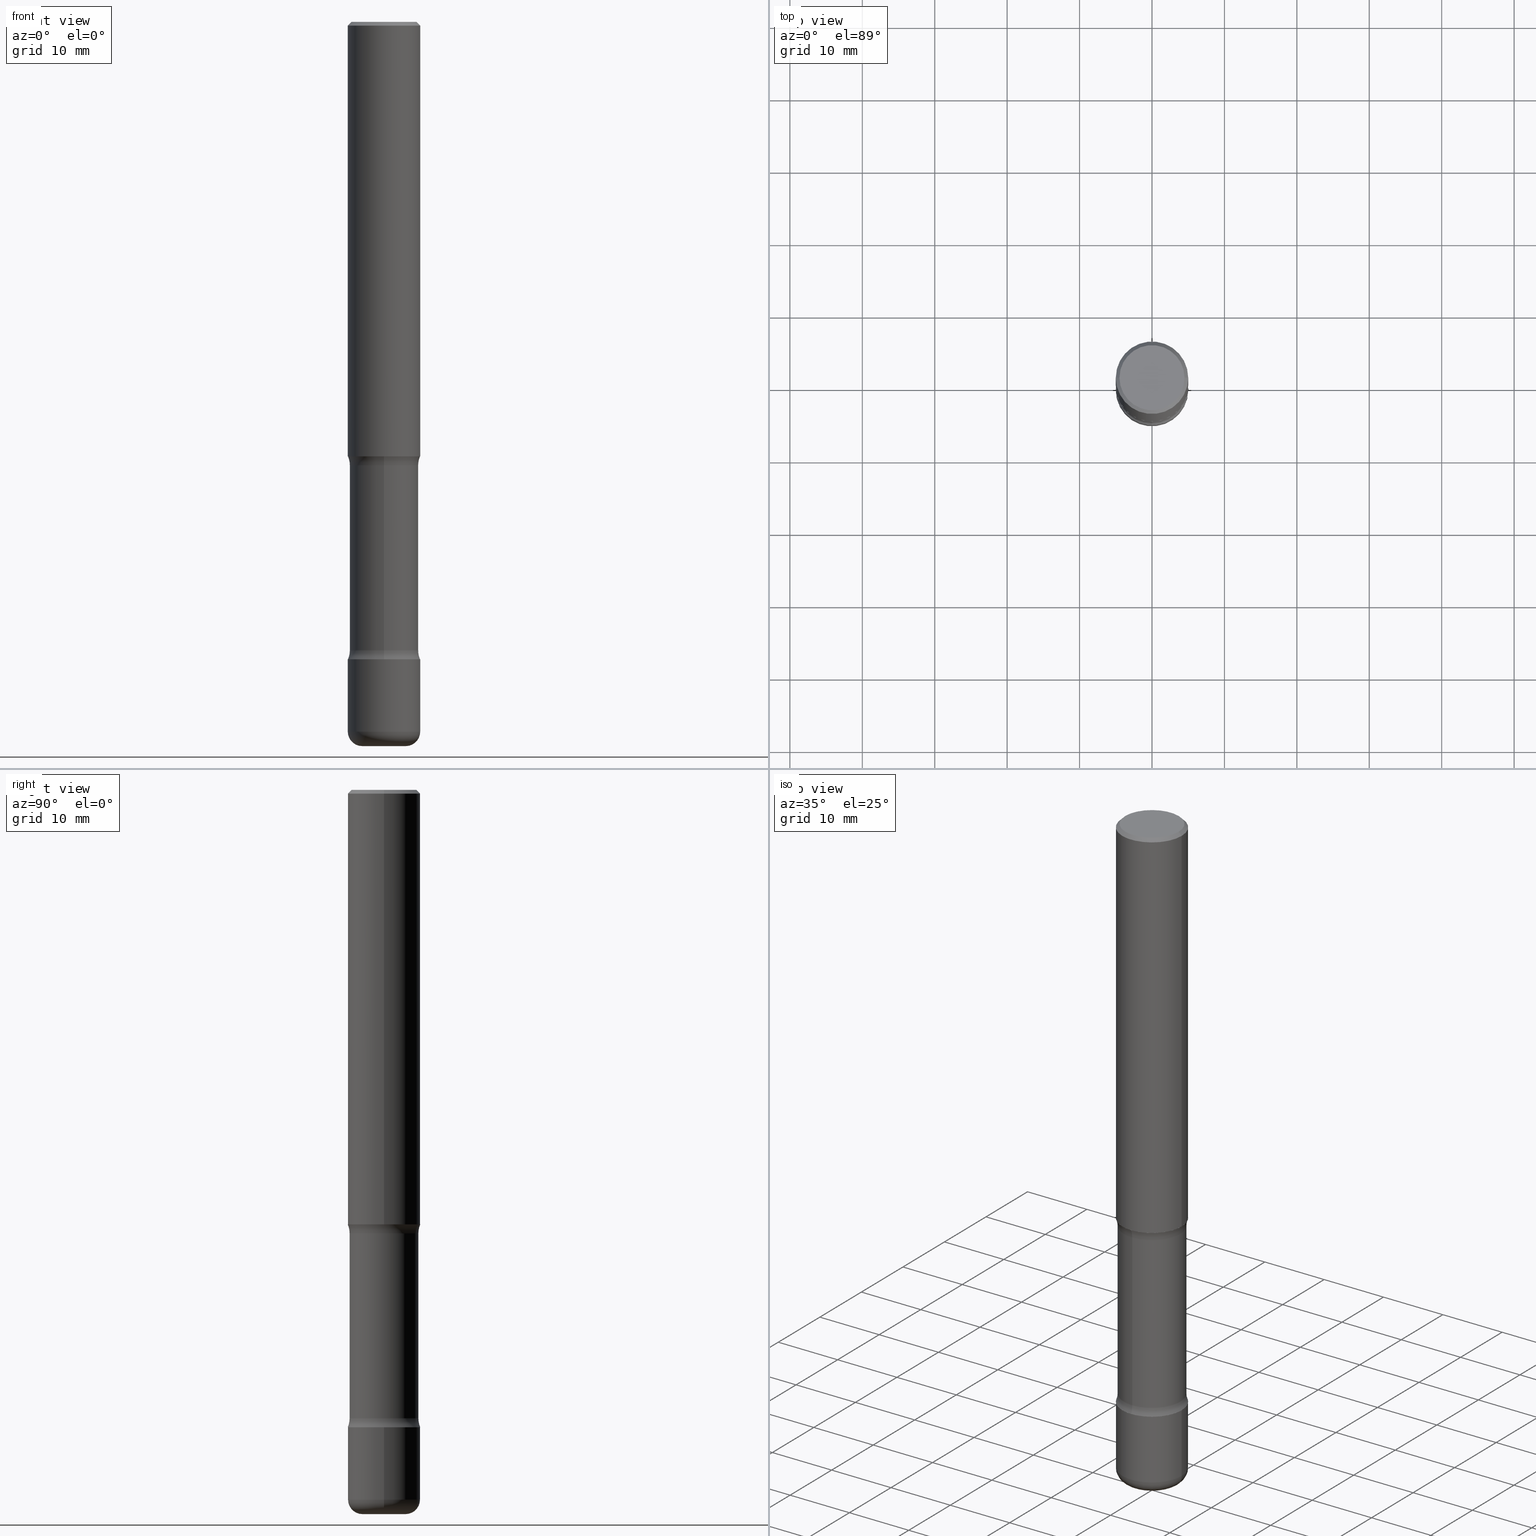
[diagram: canonical four-view strip — front | top / right | iso, engineering-drawing reading convention]
A machine part, canonical four-view strip (front | top / right | iso — engineering-drawing reading convention). The complete STEP part file that produces these views, byte-faithful:
ISO-10303-21;
HEADER;
FILE_DESCRIPTION (( 'STEP AP203' ),
    '1' );
FILE_NAME ('45132.STEP',
    '2024-03-02T04:55:23',
    ( '' ),
    ( '' ),
    'SwSTEP 2.0',
    'SolidWorks 2023',
    '' );
FILE_SCHEMA (( 'CONFIG_CONTROL_DESIGN' ));
ENDSEC;

DATA;
#1 = DIRECTION ( 'NONE',  ( -2.445468806185136877E-29, 3.491481338843145188E-15, 1.000000000000000000 ) ) ;
#2 = DIRECTION ( 'NONE',  ( 2.642978512612468392E-29, -3.208636197684844610E-15, -1.000000000000000000 ) ) ;
#3 = PERSON_AND_ORGANIZATION ( #399, #312 ) ;
#4 = CARTESIAN_POINT ( 'NONE',  ( 0.1968499999999999139, -1.420318657638188530E-15, -0.02000000000000006981 ) ) ;
#5 = AXIS2_PLACEMENT_3D ( 'NONE', #347, #516, #53 ) ;
#6 = CIRCLE ( 'NONE', #320, 0.1968500000000004690 ) ;
#7 = PERSON_AND_ORGANIZATION ( #399, #312 ) ;
#8 = DIRECTION ( 'NONE',  ( 1.000000000000000000, -6.982962677686265922E-15, 4.876176775795935793E-29 ) ) ;
#9 = DIRECTION ( 'NONE',  ( -2.445468806185136597E-29, 3.491481338843145583E-15, 1.000000000000000000 ) ) ;
#10 = ADVANCED_FACE ( 'NONE', ( #295 ), #380, .F. ) ;
#11 = ORIENTED_EDGE ( 'NONE', *, *, #134, .F. ) ;
#12 = ADVANCED_FACE ( 'NONE', ( #409 ), #118, .F. ) ;
#13 = DIRECTION ( 'NONE',  ( 6.860497997771530774E-15, 1.000000000000000000, 0.000000000000000000 ) ) ;
#14 = VERTEX_POINT ( 'NONE', #548 ) ;
#15 = CALENDAR_DATE ( 2024, 1, 3 ) ;
#16 = CLOSED_SHELL ( 'NONE', ( #254, #401, #22, #269, #281, #224 ) ) ;
#17 = DIRECTION ( 'NONE',  ( 2.438088387897960049E-29, -3.491481338843145188E-15, -1.000000000000000000 ) ) ;
#18 = ORIENTED_EDGE ( 'NONE', *, *, #169, .T. ) ;
#19 = APPROVAL_DATE_TIME ( #180, #423 ) ;
#20 = PLANE ( 'NONE',  #74 ) ;
#21 = ORIENTED_EDGE ( 'NONE', *, *, #342, .F. ) ;
#22 = ADVANCED_FACE ( 'NONE', ( #34 ), #26, .T. ) ;
#23 = CARTESIAN_POINT ( 'NONE',  ( 9.627810689950883669E-29, -1.374596203102546341E-14, -3.937000000000000277 ) ) ;
#24 = ORIENTED_EDGE ( 'NONE', *, *, #169, .F. ) ;
#25 = CARTESIAN_POINT ( 'NONE',  ( 2.178684355438173716E-15, 0.3119999999999915619, -2.410836174808471011 ) ) ;
#26 = CONICAL_SURFACE ( 'NONE', #136, 0.1968499999999999139, 0.7853981633974479459 ) ;
#27 = AXIS2_PLACEMENT_3D ( 'NONE', #78, #160, #80 ) ;
#28 = VERTEX_POINT ( 'NONE', #79 ) ;
#29 = DIRECTION ( 'NONE',  ( -1.000000000000000000, 6.982962677686265922E-15, -4.883557194083112340E-29 ) ) ;
#30 = ORIENTED_EDGE ( 'NONE', *, *, #389, .F. ) ;
#31 = EDGE_CURVE ( 'NONE', #71, #211, #277, .T. ) ;
#32 = ADVANCED_FACE ( 'NONE', ( #43 ), #145, .T. ) ;
#33 = DIRECTION ( 'NONE',  ( 1.000000000000000000, -6.982962677686266711E-15, 4.876176775795935793E-29 ) ) ;
#34 = FACE_OUTER_BOUND ( 'NONE', #76, .T. ) ;
#35 = CARTESIAN_POINT ( 'NONE',  ( 1.305814020727429820E-15, 0.1869999999999864826, -3.937000000000000721 ) ) ;
#37 = ORIENTED_EDGE ( 'NONE', *, *, #337, .T. ) ;
#36 = AXIS2_PLACEMENT_3D ( 'NONE', #556, #518, #307 ) ;
#38 = AXIS2_PLACEMENT_3D ( 'NONE', #496, #373, #282 ) ;
#39 = PERSON_AND_ORGANIZATION ( #399, #312 ) ;
#40 = EDGE_LOOP ( 'NONE', ( #144, #285, #152, #392 ) ) ;
#41 = PERSON_AND_ORGANIZATION_ROLE ( 'creator' ) ;
#42 = EDGE_CURVE ( 'NONE', #14, #506, #370, .T. ) ;
#43 = FACE_OUTER_BOUND ( 'NONE', #407, .T. ) ;
#44 = CARTESIAN_POINT ( 'NONE',  ( 9.435352294904112142E-29, -1.347118244965850850E-14, -3.858300000000000285 ) ) ;
#45 = AXIS2_PLACEMENT_3D ( 'NONE', #175, #378, #472 ) ;
#46 = AXIS2_PLACEMENT_3D ( 'NONE', #292, #123, #112 ) ;
#47 = PRODUCT_DEFINITION_FORMATION_WITH_SPECIFIED_SOURCE ( 'ANY', '', #446, .NOT_KNOWN. ) ;
#48 = LINE ( 'NONE', #217, #454 ) ;
#49 = DIRECTION ( 'NONE',  ( 1.000000000000000000, -6.982962677686266711E-15, 4.875932113059882493E-29 ) ) ;
#50 = EDGE_CURVE ( 'NONE', #71, #273, #89, .T. ) ;
#51 =( LENGTH_UNIT ( ) NAMED_UNIT ( * ) SI_UNIT ( $, .METRE. ) );
#52 = EDGE_CURVE ( 'NONE', #351, #553, #530, .T. ) ;
#53 = DIRECTION ( 'NONE',  ( 1.000000000000000000, -6.982962677686269866E-15, 0.000000000000000000 ) ) ;
#54 = CARTESIAN_POINT ( 'NONE',  ( 9.721114275267154766E-29, -1.361234598634228266E-14, -3.937000000000000277 ) ) ;
#55 = AXIS2_PLACEMENT_3D ( 'NONE', #233, #538, #393 ) ;
#56 = CC_DESIGN_DATE_AND_TIME_ASSIGNMENT ( #142, #357, ( #138 ) ) ;
#57 = DIRECTION ( 'NONE',  ( 6.982962677686265922E-15, 1.000000000000000000, -3.208636197684844216E-15 ) ) ;
#58 = ORIENTED_EDGE ( 'NONE', *, *, #537, .F. ) ;
#59 = APPROVAL_ROLE ( '' ) ;
#60 = CARTESIAN_POINT ( 'NONE',  ( 5.776686413970529753E-29, -8.247577218615279626E-15, -2.362200000000000077 ) ) ;
#61 = ORIENTED_EDGE ( 'NONE', *, *, #415, .F. ) ;
#62 = CARTESIAN_POINT ( 'NONE',  ( 8.472571225909024784E-29, -1.209658624655596216E-14, -3.464599999999999902 ) ) ;
#63 = ORIENTED_EDGE ( 'NONE', *, *, #525, .F. ) ;
#64 = AXIS2_PLACEMENT_3D ( 'NONE', #428, #2, #475 ) ;
#65 = CIRCLE ( 'NONE', #38, 0.1968500000000001082 ) ;
#66 = DIRECTION ( 'NONE',  ( -2.445468806185136597E-29, 3.491481338843145583E-15, 1.000000000000000000 ) ) ;
#67 = EDGE_CURVE ( 'NONE', #234, #417, #286, .T. ) ;
#68 = CARTESIAN_POINT ( 'NONE',  ( 0.1968499999999999139, -1.420318657638188530E-15, -0.02000000000000006981 ) ) ;
#69 = VERTEX_POINT ( 'NONE', #257 ) ;
#70 = PLANE ( 'NONE',  #244 ) ;
#71 = VERTEX_POINT ( 'NONE', #177 ) ;
#72 = DIRECTION ( 'NONE',  ( 6.982962677686266711E-15, 1.000000000000000000, -2.921762560068729017E-15 ) ) ;
#73 = EDGE_CURVE ( 'NONE', #417, #113, #387, .T. ) ;
#74 = AXIS2_PLACEMENT_3D ( 'NONE', #60, #391, #8 ) ;
#75 = DESIGN_CONTEXT ( 'detailed design', #418, 'design' ) ;
#76 = EDGE_LOOP ( 'NONE', ( #247, #481, #390, #487 ) ) ;
#77 = LOCAL_TIME ( 23, 55, 23.00000000000000000, #471 ) ;
#78 = CARTESIAN_POINT ( 'NONE',  ( 4.890937612370289799E-31, -6.982962677686315028E-17, -0.02000000000000006981 ) ) ;
#79 = CARTESIAN_POINT ( 'NONE',  ( 1.374596203102600181E-15, 0.1968499999999919203, -2.362200000000000966 ) ) ;
#80 = DIRECTION ( 'NONE',  ( -1.000000000000000000, 6.982962677686266711E-15, 0.000000000000000000 ) ) ;
#81 = EDGE_LOOP ( 'NONE', ( #542, #497, #533, #458 ) ) ;
#82 = CARTESIAN_POINT ( 'NONE',  ( 8.472571225909024784E-29, -1.209658624655596216E-14, -3.464599999999999902 ) ) ;
#83 = VECTOR ( 'NONE', #279, 39.37007874015748143 ) ;
#84 = MANIFOLD_SOLID_BREP ( 'Body-Move/Copy2[1]', #463 ) ;
#85 = EDGE_CURVE ( 'NONE', #28, #69, #207, .T. ) ;
#86 = PERSON_AND_ORGANIZATION ( #399, #312 ) ;
#87 = DIRECTION ( 'NONE',  ( 2.642978512612468392E-29, -3.208636197684844610E-15, -1.000000000000000000 ) ) ;
#88 = PERSON_AND_ORGANIZATION_ROLE ( 'design_supplier' ) ;
#89 = LINE ( 'NONE', #4, #187 ) ;
#90 =( CONVERSION_BASED_UNIT ( 'INCH', #555 ) LENGTH_UNIT ( ) NAMED_UNIT ( #102 ) );
#91 = UNCERTAINTY_MEASURE_WITH_UNIT (LENGTH_MEASURE( 1.000000000000000082E-05 ), #90, 'distance_accuracy_value', 'NONE');
#92 = DIRECTION ( 'NONE',  ( 6.982962677686266711E-15, 1.000000000000000000, -2.921762560068730989E-15 ) ) ;
#93 = EDGE_CURVE ( 'NONE', #417, #101, #250, .T. ) ;
#94 = AXIS2_PLACEMENT_3D ( 'NONE', #44, #511, #127 ) ;
#95 = CIRCLE ( 'NONE', #521, 0.1968500000000001082 ) ;
#96 = AXIS2_PLACEMENT_3D ( 'NONE', #527, #400, #13 ) ;
#97 = DATE_AND_TIME ( #343, #210 ) ;
#98 = CARTESIAN_POINT ( 'NONE',  ( 5.558951713605038858E-29, -8.559385702228190105E-15, -2.362200000000000077 ) ) ;
#99 = CARTESIAN_POINT ( 'NONE',  ( -0.1968500000000001082, -1.138518097276347833E-14, -3.464599999999999902 ) ) ;
#100 = CARTESIAN_POINT ( 'NONE',  ( 8.472571225909024784E-29, -1.209658624655596216E-14, -3.464599999999999902 ) ) ;
#101 = VERTEX_POINT ( 'NONE', #420 ) ;
#102 = DIMENSIONAL_EXPONENTS ( 1.000000000000000000, 0.000000000000000000, 0.000000000000000000, 0.000000000000000000, 0.000000000000000000, 0.000000000000000000, 0.000000000000000000 ) ;
#103 = CIRCLE ( 'NONE', #427, 0.1250000000000000555 ) ;
#104 = DIRECTION ( 'NONE',  ( -1.000000000000000000, 6.982962677686265922E-15, -4.876176775795935793E-29 ) ) ;
#105 = ORIENTED_EDGE ( 'NONE', *, *, #114, .F. ) ;
#106 = DIRECTION ( 'NONE',  ( -2.445468806185136877E-29, 3.491481338843145188E-15, 1.000000000000000000 ) ) ;
#107 = VERTEX_POINT ( 'NONE', #99 ) ;
#108 = DIRECTION ( 'NONE',  ( -1.000000000000000000, 6.982962677686265922E-15, -4.876176775795935793E-29 ) ) ;
#109 = ORIENTED_EDGE ( 'NONE', *, *, #515, .T. ) ;
#110 = CYLINDRICAL_SURFACE ( 'NONE', #55, 0.1968500000000000250 ) ;
#111 = ORIENTED_EDGE ( 'NONE', *, *, #549, .T. ) ;
#112 = DIRECTION ( 'NONE',  ( 1.000000000000000000, -6.982962677686268288E-15, 0.000000000000000000 ) ) ;
#113 = VERTEX_POINT ( 'NONE', #305 ) ;
#114 = EDGE_CURVE ( 'NONE', #506, #14, #155, .T. ) ;
#115 = LINE ( 'NONE', #35, #156 ) ;
#116 = DIRECTION ( 'NONE',  ( 2.642978512612468392E-29, -3.208636197684844610E-15, -1.000000000000000000 ) ) ;
#117 = DIRECTION ( 'NONE',  ( -2.445468806185136597E-29, 3.491481338843145583E-15, 1.000000000000000000 ) ) ;
#118 = TOROIDAL_SURFACE ( 'NONE', #226, 0.3120000000000001106, 0.1250000000000000278 ) ;
#119 = CIRCLE ( 'NONE', #540, 0.1181500000000002687 ) ;
#120 = ORIENTED_EDGE ( 'NONE', *, *, #415, .T. ) ;
#121 = DIRECTION ( 'NONE',  ( 2.642978512612468392E-29, -3.208636197684844610E-15, -1.000000000000000000 ) ) ;
#122 = EDGE_LOOP ( 'NONE', ( #449, #396, #213, #485 ) ) ;
#123 = DIRECTION ( 'NONE',  ( -2.445468806185136597E-29, 3.491481338843145583E-15, 1.000000000000000000 ) ) ;
#124 = VERTEX_POINT ( 'NONE', #215 ) ;
#125 = EDGE_CURVE ( 'NONE', #113, #107, #95, .T. ) ;
#126 = DATE_AND_TIME ( #212, #514 ) ;
#127 = DIRECTION ( 'NONE',  ( 1.000000000000000000, -6.982962677686272233E-15, 4.883557194083114022E-29 ) ) ;
#128 = AXIS2_PLACEMENT_3D ( 'NONE', #448, #148, #104 ) ;
#129 = DIRECTION ( 'NONE',  ( 1.000000000000000000, 0.000000000000000000, 0.000000000000000000 ) ) ;
#130 = CARTESIAN_POINT ( 'NONE',  ( 5.558951713605038858E-29, -8.559385702228190105E-15, -2.362200000000000077 ) ) ;
#131 = CC_DESIGN_PERSON_AND_ORGANIZATION_ASSIGNMENT ( #132, #88, ( #47 ) ) ;
#132 = PERSON_AND_ORGANIZATION ( #399, #312 ) ;
#133 = CARTESIAN_POINT ( 'NONE',  ( 5.687496078559489130E-29, -8.715441493235574538E-15, -2.410836174808470123 ) ) ;
#134 = EDGE_CURVE ( 'NONE', #124, #273, #330, .T. ) ;
#135 = DIRECTION ( 'NONE',  ( 2.642978512612468392E-29, -3.208636197684844610E-15, -1.000000000000000000 ) ) ;
#136 = AXIS2_PLACEMENT_3D ( 'NONE', #205, #545, #163 ) ;
#137 = AXIS2_PLACEMENT_3D ( 'NONE', #62, #17, #108 ) ;
#138 = SECURITY_CLASSIFICATION ( '', '', #534 ) ;
#139 = DIRECTION ( 'NONE',  ( -2.445468806185136597E-29, 3.491481338843145583E-15, 1.000000000000000000 ) ) ;
#140 = FACE_OUTER_BOUND ( 'NONE', #186, .T. ) ;
#141 = CC_DESIGN_PERSON_AND_ORGANIZATION_ASSIGNMENT ( #7, #488, ( #138 ) ) ;
#142 = DATE_AND_TIME ( #150, #321 ) ;
#143 = FACE_OUTER_BOUND ( 'NONE', #323, .T. ) ;
#144 = ORIENTED_EDGE ( 'NONE', *, *, #42, .F. ) ;
#145 = TOROIDAL_SURFACE ( 'NONE', #94, 0.1181500000000002409, 0.07869999999999995055 ) ;
#146 = CIRCLE ( 'NONE', #260, 0.1869999999999999718 ) ;
#147 = APPROVAL_PERSON_ORGANIZATION ( #482, #423, #59 ) ;
#148 = DIRECTION ( 'NONE',  ( 2.438088387897960049E-29, -3.491481338843145188E-15, -1.000000000000000000 ) ) ;
#149 = ORIENTED_EDGE ( 'NONE', *, *, #67, .T. ) ;
#150 = CALENDAR_DATE ( 2024, 1, 3 ) ;
#151 = FACE_OUTER_BOUND ( 'NONE', #539, .T. ) ;
#152 = ORIENTED_EDGE ( 'NONE', *, *, #191, .T. ) ;
#153 = PLANE ( 'NONE',  #386 ) ;
#154 = ORIENTED_EDGE ( 'NONE', *, *, #52, .F. ) ;
#155 = CIRCLE ( 'NONE', #64, 0.1870000000000002494 ) ;
#156 = VECTOR ( 'NONE', #450, 39.37007874015748143 ) ;
#157 = CARTESIAN_POINT ( 'NONE',  ( 9.435352294904112142E-29, -1.347118244965850850E-14, -3.858300000000000285 ) ) ;
#158 = VERTEX_POINT ( 'NONE', #520 ) ;
#159 = ADVANCED_FACE ( 'NONE', ( #432 ), #467, .T. ) ;
#160 = DIRECTION ( 'NONE',  ( 2.445468806185136597E-29, -3.491481338843145583E-15, -1.000000000000000000 ) ) ;
#161 = ORIENTED_EDGE ( 'NONE', *, *, #309, .F. ) ;
#162 = FACE_OUTER_BOUND ( 'NONE', #240, .T. ) ;
#163 = DIRECTION ( 'NONE',  ( -1.000000000000000000, 6.982962677686266711E-15, 0.000000000000000000 ) ) ;
#164 = DIRECTION ( 'NONE',  ( -2.445468806185136597E-29, 3.491481338843145583E-15, 1.000000000000000000 ) ) ;
#165 = AXIS2_PLACEMENT_3D ( 'NONE', #54, #87, #173 ) ;
#166 = CIRCLE ( 'NONE', #395, 0.1968499999999999139 ) ;
#167 = DIRECTION ( 'NONE',  ( -2.445468806185136597E-29, 3.491481338843145583E-15, 1.000000000000000000 ) ) ;
#168 = CARTESIAN_POINT ( 'NONE',  ( -0.1968499999999999139, 1.304766576325677916E-15, -0.02000000000000006981 ) ) ;
#169 = EDGE_CURVE ( 'NONE', #280, #158, #346, .T. ) ;
#170 = ORIENTED_EDGE ( 'NONE', *, *, #85, .F. ) ;
#171 = DIRECTION ( 'NONE',  ( 6.860497997771532351E-15, 1.000000000000000000, 0.000000000000000000 ) ) ;
#172 = DIRECTION ( 'NONE',  ( 2.642978512612468392E-29, -3.208636197684844610E-15, -1.000000000000000000 ) ) ;
#173 = DIRECTION ( 'NONE',  ( 6.982962677686266711E-15, 1.000000000000000000, -2.921762560068729017E-15 ) ) ;
#174 = APPROVAL ( #377, 'UNSPECIFIED' ) ;
#175 = CARTESIAN_POINT ( 'NONE',  ( 0.1181500000000002409, -1.429621949002714343E-14, -3.858300000000000285 ) ) ;
#176 = CARTESIAN_POINT ( 'NONE',  ( 8.344026860954575633E-29, -1.194053045554857930E-14, -3.415963825191530745 ) ) ;
#177 = CARTESIAN_POINT ( 'NONE',  ( 0.1768499999999998407, -1.316798864272041352E-15, 4.268512490109333727E-18 ) ) ;
#178 = TOROIDAL_SURFACE ( 'NONE', #493, 0.1181500000000002409, 0.07869999999999995055 ) ;
#179 = CC_DESIGN_APPROVAL ( #174, ( #47 ) ) ;
#180 = DATE_AND_TIME ( #15, #455 ) ;
#181 = DIRECTION ( 'NONE',  ( 1.000000000000000000, -6.982962677686265133E-15, 0.000000000000000000 ) ) ;
#182 = EDGE_CURVE ( 'NONE', #553, #319, #146, .T. ) ;
#183 = DIRECTION ( 'NONE',  ( 1.000000000000000000, -6.982962677686266711E-15, 4.875932113059882493E-29 ) ) ;
#184 = EDGE_LOOP ( 'NONE', ( #61, #509, #367, #63 ) ) ;
#185 = DIRECTION ( 'NONE',  ( 2.642978512612467832E-29, -3.208636197684844610E-15, -1.000000000000000000 ) ) ;
#186 = EDGE_LOOP ( 'NONE', ( #290, #24 ) ) ;
#187 = VECTOR ( 'NONE', #301, 39.37007874015748143 ) ;
#188 = EDGE_CURVE ( 'NONE', #101, #417, #209, .T. ) ;
#189 = TOROIDAL_SURFACE ( 'NONE', #297, 0.3120000000000002771, 0.1250000000000000555 ) ;
#190 = LINE ( 'NONE', #237, #83 ) ;
#191 = EDGE_CURVE ( 'NONE', #69, #28, #6, .T. ) ;
#192 = ORIENTED_EDGE ( 'NONE', *, *, #73, .T. ) ;
#193 = COORDINATED_UNIVERSAL_TIME_OFFSET ( 5, 0, .BEHIND. ) ;
#194 = CARTESIAN_POINT ( 'NONE',  ( -1.043851414335219820E-46, 1.490343170380447200E-32, 4.268512490100411279E-18 ) ) ;
#195 = ORIENTED_EDGE ( 'NONE', *, *, #206, .F. ) ;
#196 = CARTESIAN_POINT ( 'NONE',  ( 2.178684355438199354E-15, 0.3119999999999881757, -3.415963825191531633 ) ) ;
#197 = EDGE_LOOP ( 'NONE', ( #413, #460, #359, #361 ) ) ;
#198 = CIRCLE ( 'NONE', #484, 0.1968500000000001082 ) ;
#199 = DIRECTION ( 'NONE',  ( -1.000000000000000000, 6.982962677686265922E-15, -4.883557194083112340E-29 ) ) ;
#200 = ADVANCED_FACE ( 'NONE', ( #560 ), #252, .F. ) ;
#201 = ORIENTED_EDGE ( 'NONE', *, *, #379, .F. ) ;
#202 = CARTESIAN_POINT ( 'NONE',  ( 8.472571225909024784E-29, -1.209658624655596216E-14, -3.464599999999999902 ) ) ;
#203 = DIRECTION ( 'NONE',  ( 6.982962677686265922E-15, 1.000000000000000000, -3.208636197684844216E-15 ) ) ;
#204 = FACE_OUTER_BOUND ( 'NONE', #253, .T. ) ;
#205 = CARTESIAN_POINT ( 'NONE',  ( 4.890937612370289799E-31, -6.982962677686315028E-17, -0.02000000000000006981 ) ) ;
#206 = EDGE_CURVE ( 'NONE', #273, #124, #166, .T. ) ;
#207 = CIRCLE ( 'NONE', #503, 0.1968500000000004690 ) ;
#208 = FACE_OUTER_BOUND ( 'NONE', #266, .T. ) ;
#209 = CIRCLE ( 'NONE', #435, 0.1968500000000002470 ) ;
#210 = LOCAL_TIME ( 23, 55, 23.00000000000000000, #517 ) ;
#211 = VERTEX_POINT ( 'NONE', #229 ) ;
#212 = CALENDAR_DATE ( 2024, 1, 3 ) ;
#213 = ORIENTED_EDGE ( 'NONE', *, *, #125, .F. ) ;
#214 = DIRECTION ( 'NONE',  ( 1.000000000000000000, -6.982962677686266711E-15, 4.876176775795935793E-29 ) ) ;
#215 = CARTESIAN_POINT ( 'NONE',  ( -0.1968499999999999139, 1.304766576325677916E-15, -0.02000000000000006981 ) ) ;
#216 = EDGE_CURVE ( 'NONE', #158, #280, #198, .T. ) ;
#217 = CARTESIAN_POINT ( 'NONE',  ( -0.1968500000000000250, 1.398703375343757393E-15, -9.682923725166783677E-30 ) ) ;
#218 = DIRECTION ( 'NONE',  ( 2.642978512612468392E-29, -3.208636197684844610E-15, -1.000000000000000000 ) ) ;
#219 = VECTOR ( 'NONE', #106, 39.37007874015748143 ) ;
#220 = CARTESIAN_POINT ( 'NONE',  ( -1.316701078222216832E-15, -0.1870000000000119345, -3.415963825191530301 ) ) ;
#221 = CARTESIAN_POINT ( 'NONE',  ( 4.890937612370289799E-31, -6.982962677686315028E-17, -0.02000000000000006981 ) ) ;
#222 = DIRECTION ( 'NONE',  ( 6.982962677686266711E-15, 1.000000000000000000, -2.921762560068730989E-15 ) ) ;
#223 = DIRECTION ( 'NONE',  ( -2.445468806185136597E-29, 3.491481338843145583E-15, 1.000000000000000000 ) ) ;
#224 = ADVANCED_FACE ( 'NONE', ( #310 ), #532, .T. ) ;
#225 = CARTESIAN_POINT ( 'NONE',  ( 9.435352294904112142E-29, -1.347118244965850850E-14, -3.858300000000000285 ) ) ;
#226 = AXIS2_PLACEMENT_3D ( 'NONE', #500, #116, #203 ) ;
#227 = AXIS2_PLACEMENT_3D ( 'NONE', #546, #164, #33 ) ;
#228 = AXIS2_PLACEMENT_3D ( 'NONE', #176, #172, #222 ) ;
#229 = CARTESIAN_POINT ( 'NONE',  ( -0.1768499999999998407, 1.269851762937246464E-15, 4.268512490091652920E-18 ) ) ;
#230 = ORIENTED_EDGE ( 'NONE', *, *, #188, .F. ) ;
#231 = CARTESIAN_POINT ( 'NONE',  ( 0.1181500000000002687, -1.457099907139409992E-14, -3.937000000000000277 ) ) ;
#232 = ORIENTED_EDGE ( 'NONE', *, *, #67, .F. ) ;
#233 = CARTESIAN_POINT ( 'NONE',  ( 0.000000000000000000, 0.000000000000000000, 0.000000000000000000 ) ) ;
#234 = VERTEX_POINT ( 'NONE', #231 ) ;
#235 = AXIS2_PLACEMENT_3D ( 'NONE', #100, #275, #434 ) ;
#236 = AXIS2_PLACEMENT_3D ( 'NONE', #251, #519, #129 ) ;
#237 = CARTESIAN_POINT ( 'NONE',  ( -1.282913125583179628E-15, -0.1870000000000137386, -3.936999999999999389 ) ) ;
#238 = EDGE_LOOP ( 'NONE', ( #441, #105, #502, #374 ) ) ;
#239 = FACE_OUTER_BOUND ( 'NONE', #536, .T. ) ;
#240 = EDGE_LOOP ( 'NONE', ( #436, #411, #192, #30 ) ) ;
#241 = PRODUCT_DEFINITION_SHAPE ( 'NONE', 'NONE',  #433 ) ;
#242 = CC_DESIGN_PERSON_AND_ORGANIZATION_ASSIGNMENT ( #559, #429, ( #433 ) ) ;
#243 = DIRECTION ( 'NONE',  ( -2.445468806185136597E-29, 3.491481338843145583E-15, 1.000000000000000000 ) ) ;
#244 = AXIS2_PLACEMENT_3D ( 'NONE', #82, #408, #403 ) ;
#245 = FACE_OUTER_BOUND ( 'NONE', #333, .T. ) ;
#246 = EDGE_LOOP ( 'NONE', ( #58, #18, #314, #11 ) ) ;
#247 = ORIENTED_EDGE ( 'NONE', *, *, #50, .F. ) ;
#248 = CARTESIAN_POINT ( 'NONE',  ( 9.627810689950883669E-29, -1.374596203102546341E-14, -3.937000000000000277 ) ) ;
#249 = EDGE_LOOP ( 'NONE', ( #551, #335 ) ) ;
#250 = CIRCLE ( 'NONE', #5, 0.1968500000000002470 ) ;
#251 = CARTESIAN_POINT ( 'NONE',  ( 0.000000000000000000, 0.000000000000000000, 0.000000000000000000 ) ) ;
#252 = TOROIDAL_SURFACE ( 'NONE', #444, 0.3120000000000001106, 0.1250000000000000278 ) ;
#253 = EDGE_LOOP ( 'NONE', ( #271, #201 ) ) ;
#254 = ADVANCED_FACE ( 'NONE', ( #239 ), #110, .T. ) ;
#255 = APPROVAL_DATE_TIME ( #126, #174 ) ;
#256 = DIRECTION ( 'NONE',  ( -2.445468806185136597E-29, 3.491481338843145583E-15, 1.000000000000000000 ) ) ;
#257 = CARTESIAN_POINT ( 'NONE',  ( -1.350489030861273167E-15, -0.1968500000000089900, -2.362199999999999189 ) ) ;
#258 = MANIFOLD_SOLID_BREP ( 'Body-Move/Copy2[2]', #16 ) ;
#259 = CARTESIAN_POINT ( 'NONE',  ( 0.000000000000000000, 0.000000000000000000, 0.000000000000000000 ) ) ;
#260 = AXIS2_PLACEMENT_3D ( 'NONE', #422, #302, #92 ) ;
#261 = APPROVAL_STATUS ( 'not_yet_approved' ) ;
#262 = CARTESIAN_POINT ( 'NONE',  ( 5.776686413970529753E-29, -8.247577218615279626E-15, -2.362200000000000077 ) ) ;
#263 = EDGE_CURVE ( 'NONE', #14, #553, #190, .T. ) ;
#264 = CARTESIAN_POINT ( 'NONE',  ( 8.472571225909024784E-29, -1.209658624655596216E-14, -3.464599999999999902 ) ) ;
#265 = CARTESIAN_POINT ( 'NONE',  ( -0.1181500000000002409, -1.263167620735794871E-14, -3.858300000000000285 ) ) ;
#266 = EDGE_LOOP ( 'NONE', ( #109, #445, #402, #232 ) ) ;
#267 = AXIS2_PLACEMENT_3D ( 'NONE', #262, #223, #385 ) ;
#268 = APPROVAL_PERSON_ORGANIZATION ( #39, #174, #340 ) ;
#269 = ADVANCED_FACE ( 'NONE', ( #151 ), #442, .F. ) ;
#270 = CARTESIAN_POINT ( 'NONE',  ( 0.1968500000000000250, -1.374596203102541608E-15, 9.598753983154300858E-30 ) ) ;
#271 = ORIENTED_EDGE ( 'NONE', *, *, #515, .F. ) ;
#272 = DIRECTION ( 'NONE',  ( -2.445468806185136877E-29, 3.491481338843145188E-15, 1.000000000000000000 ) ) ;
#273 = VERTEX_POINT ( 'NONE', #68 ) ;
#274 = APPROVAL_STATUS ( 'not_yet_approved' ) ;
#275 = DIRECTION ( 'NONE',  ( 2.642978512612468392E-29, -3.208636197684844610E-15, -1.000000000000000000 ) ) ;
#276 = ORIENTED_EDGE ( 'NONE', *, *, #42, .T. ) ;
#277 = CIRCLE ( 'NONE', #345, 0.1768499999999998407 ) ;
#278 = AXIS2_PLACEMENT_3D ( 'NONE', #194, #9, #183 ) ;
#279 = DIRECTION ( 'NONE',  ( 2.642978512612468392E-29, -3.208636197684844610E-15, -1.000000000000000000 ) ) ;
#280 = VERTEX_POINT ( 'NONE', #437 ) ;
#281 = ADVANCED_FACE ( 'NONE', ( #140 ), #20, .F. ) ;
#282 = DIRECTION ( 'NONE',  ( 1.000000000000000000, -6.982962677686265133E-15, 0.000000000000000000 ) ) ;
#283 = CARTESIAN_POINT ( 'NONE',  ( 5.704860736508114103E-29, -8.690574314718192399E-15, -2.410836174808470123 ) ) ;
#284 = LINE ( 'NONE', #168, #464 ) ;
#285 = ORIENTED_EDGE ( 'NONE', *, *, #318, .T. ) ;
#286 = CIRCLE ( 'NONE', #45, 0.07869999999999993667 ) ;
#287 = CIRCLE ( 'NONE', #96, 0.1250000000000000555 ) ;
#289 = DIRECTION ( 'NONE',  ( 1.000000000000000000, -6.982962677686272233E-15, 4.883557194083114022E-29 ) ) ;
#288 =( GEOMETRIC_REPRESENTATION_CONTEXT ( 3 ) GLOBAL_UNCERTAINTY_ASSIGNED_CONTEXT ( ( #91 ) ) GLOBAL_UNIT_ASSIGNED_CONTEXT ( ( #90, #523, #466 ) ) REPRESENTATION_CONTEXT ( 'NONE', 'WORKASPACE' ) );
#290 = ORIENTED_EDGE ( 'NONE', *, *, #216, .F. ) ;
#291 = EDGE_CURVE ( 'NONE', #101, #107, #308, .T. ) ;
#292 = CARTESIAN_POINT ( 'NONE',  ( 9.627810689950883669E-29, -1.374596203102546341E-14, -3.937000000000000277 ) ) ;
#293 = EDGE_LOOP ( 'NONE', ( #154, #404, #376, #111 ) ) ;
#294 = CYLINDRICAL_SURFACE ( 'NONE', #227, 0.1968500000000001915 ) ;
#295 = FACE_OUTER_BOUND ( 'NONE', #238, .T. ) ;
#296 = COORDINATED_UNIVERSAL_TIME_OFFSET ( 5, 0, .BEHIND. ) ;
#297 = AXIS2_PLACEMENT_3D ( 'NONE', #360, #121, #324 ) ;
#298 = DIRECTION ( 'NONE',  ( 6.982962677686265133E-15, 1.000000000000000000, -2.775563112689110384E-15 ) ) ;
#299 = ADVANCED_FACE ( 'NONE', ( #486 ), #483, .F. ) ;
#300 = PERSON_AND_ORGANIZATION_ROLE ( 'design_owner' ) ;
#301 = DIRECTION ( 'NONE',  ( 0.7071067811865472397, -7.319954787623254468E-15, -0.7071067811865477948 ) ) ;
#302 = DIRECTION ( 'NONE',  ( 2.642978512612468392E-29, -3.208636197684844610E-15, -1.000000000000000000 ) ) ;
#303 = DIRECTION ( 'NONE',  ( -2.445468806185136597E-29, 3.491481338843145583E-15, 1.000000000000000000 ) ) ;
#305 = CARTESIAN_POINT ( 'NONE',  ( 0.1968500000000001082, -1.347118244965850534E-14, -3.464599999999999902 ) ) ;
#304 = AXIS2_PLACEMENT_3D ( 'NONE', #550, #459, #72 ) ;
#306 = APPLICATION_PROTOCOL_DEFINITION ( 'international standard', 'config_control_design', 1994, #547 ) ;
#307 = DIRECTION ( 'NONE',  ( 1.000000000000000000, -6.982962677686266711E-15, 0.000000000000000000 ) ) ;
#308 = LINE ( 'NONE', #315, #371 ) ;
#309 = EDGE_CURVE ( 'NONE', #490, #101, #331, .T. ) ;
#310 = FACE_OUTER_BOUND ( 'NONE', #246, .T. ) ;
#311 = CIRCLE ( 'NONE', #235, 0.1968500000000001082 ) ;
#312 = ORGANIZATION ( 'UNSPECIFIED', 'UNSPECIFIED', '' ) ;
#313 = CARTESIAN_POINT ( 'NONE',  ( -1.350489030861241415E-15, -0.1968500000000121264, -3.464599999999999458 ) ) ;
#314 = ORIENTED_EDGE ( 'NONE', *, *, #342, .T. ) ;
#315 = CARTESIAN_POINT ( 'NONE',  ( -0.1968500000000001915, 1.398703375343758577E-15, -9.682923725166790684E-30 ) ) ;
#316 = ORIENTED_EDGE ( 'NONE', *, *, #329, .T. ) ;
#317 = CARTESIAN_POINT ( 'NONE',  ( 5.776686413970529753E-29, -8.247577218615279626E-15, -2.362200000000000077 ) ) ;
#318 = EDGE_CURVE ( 'NONE', #14, #69, #287, .T. ) ;
#319 = VERTEX_POINT ( 'NONE', #535 ) ;
#320 = AXIS2_PLACEMENT_3D ( 'NONE', #130, #218, #383 ) ;
#321 = LOCAL_TIME ( 23, 55, 23.00000000000000000, #193 ) ;
#322 = DIRECTION ( 'NONE',  ( -1.000000000000000000, 6.982962677686265922E-15, -4.876176775795935793E-29 ) ) ;
#323 = EDGE_LOOP ( 'NONE', ( #170, #364 ) ) ;
#324 = DIRECTION ( 'NONE',  ( 6.982962677686265922E-15, 1.000000000000000000, -3.208636197684844610E-15 ) ) ;
#325 = ORIENTED_EDGE ( 'NONE', *, *, #182, .F. ) ;
#326 = PRODUCT_RELATED_PRODUCT_CATEGORY ( 'detail', '', ( #446 ) ) ;
#327 = DIRECTION ( 'NONE',  ( 6.982962677686265922E-15, 1.000000000000000000, -2.775563112689115117E-15 ) ) ;
#328 = DIRECTION ( 'NONE',  ( 6.982962677686265922E-15, 1.000000000000000000, -3.208636197684844610E-15 ) ) ;
#329 = EDGE_CURVE ( 'NONE', #438, #351, #311, .T. ) ;
#330 = CIRCLE ( 'NONE', #36, 0.1968499999999999139 ) ;
#331 = CIRCLE ( 'NONE', #513, 0.07869999999999993667 ) ;
#332 = DIRECTION ( 'NONE',  ( -0.7071067811865472397, 2.468850131082253905E-15, -0.7071067811865477948 ) ) ;
#333 = EDGE_LOOP ( 'NONE', ( #316, #120 ) ) ;
#334 = CARTESIAN_POINT ( 'NONE',  ( -0.1181500000000002687, -1.248946743151982756E-14, -3.937000000000000277 ) ) ;
#335 = ORIENTED_EDGE ( 'NONE', *, *, #389, .T. ) ;
#336 = DIRECTION ( 'NONE',  ( 1.000000000000000000, -6.982962677686265133E-15, 0.000000000000000000 ) ) ;
#337 = EDGE_CURVE ( 'NONE', #211, #71, #473, .T. ) ;
#338 = AXIS2_PLACEMENT_3D ( 'NONE', #196, #29, #405 ) ;
#339 = DIRECTION ( 'NONE',  ( 1.000000000000000000, -6.982962677686269866E-15, 0.000000000000000000 ) ) ;
#340 = APPROVAL_ROLE ( '' ) ;
#341 = DIRECTION ( 'NONE',  ( 2.642978512612468392E-29, -3.208636197684844610E-15, -1.000000000000000000 ) ) ;
#342 = EDGE_CURVE ( 'NONE', #158, #273, #358, .T. ) ;
#343 = CALENDAR_DATE ( 2024, 1, 3 ) ;
#344 = CARTESIAN_POINT ( 'NONE',  ( 0.1968500000000001915, -1.374596203102542989E-15, 9.598753983154309266E-30 ) ) ;
#345 = AXIS2_PLACEMENT_3D ( 'NONE', #369, #167, #49 ) ;
#347 = CARTESIAN_POINT ( 'NONE',  ( 9.435352294904112142E-29, -1.347118244965850850E-14, -3.858300000000000285 ) ) ;
#346 = CIRCLE ( 'NONE', #267, 0.1968500000000001082 ) ;
#348 = DIRECTION ( 'NONE',  ( 1.000000000000000000, -6.982962677686266711E-15, 0.000000000000000000 ) ) ;
#349 = ADVANCED_FACE ( 'NONE', ( #143 ), #153, .F. ) ;
#350 = DIRECTION ( 'NONE',  ( -2.445468806185136597E-29, 3.491481338843145583E-15, 1.000000000000000000 ) ) ;
#351 = VERTEX_POINT ( 'NONE', #313 ) ;
#352 = DIRECTION ( 'NONE',  ( 6.982962677686265922E-15, 1.000000000000000000, -3.208636197684844610E-15 ) ) ;
#353 = ORIENTED_EDGE ( 'NONE', *, *, #263, .F. ) ;
#354 = CIRCLE ( 'NONE', #504, 0.1968500000000001082 ) ;
#355 = DIRECTION ( 'NONE',  ( 7.105427357601001859E-15, 1.000000000000000000, -3.491481338843145583E-15 ) ) ;
#356 = ORIENTED_EDGE ( 'NONE', *, *, #440, .T. ) ;
#357 = DATE_TIME_ROLE ( 'classification_date' ) ;
#358 = LINE ( 'NONE', #270, #219 ) ;
#359 = ORIENTED_EDGE ( 'NONE', *, *, #206, .T. ) ;
#360 = CARTESIAN_POINT ( 'NONE',  ( 5.704860736508114103E-29, -8.690574314718192399E-15, -2.410836174808470123 ) ) ;
#361 = ORIENTED_EDGE ( 'NONE', *, *, #478, .F. ) ;
#362 = AXIS2_PLACEMENT_3D ( 'NONE', #248, #412, #322 ) ;
#363 = CYLINDRICAL_SURFACE ( 'NONE', #304, 0.1870000000000001106 ) ;
#364 = ORIENTED_EDGE ( 'NONE', *, *, #191, .F. ) ;
#365 = ADVANCED_FACE ( 'NONE', ( #366 ), #363, .T. ) ;
#366 = FACE_OUTER_BOUND ( 'NONE', #528, .T. ) ;
#367 = ORIENTED_EDGE ( 'NONE', *, *, #182, .T. ) ;
#368 = DIRECTION ( 'NONE',  ( 2.642978512612468392E-29, -3.208636197684844610E-15, -1.000000000000000000 ) ) ;
#369 = CARTESIAN_POINT ( 'NONE',  ( -1.043851414335219820E-46, 1.490343170380447200E-32, 4.268512490100411279E-18 ) ) ;
#370 = CIRCLE ( 'NONE', #425, 0.1870000000000002494 ) ;
#371 = VECTOR ( 'NONE', #272, 39.37007874015748143 ) ;
#372 = CC_DESIGN_APPROVAL ( #541, ( #433 ) ) ;
#373 = DIRECTION ( 'NONE',  ( -2.445468806185136597E-29, 3.491481338843145583E-15, 1.000000000000000000 ) ) ;
#374 = ORIENTED_EDGE ( 'NONE', *, *, #85, .T. ) ;
#375 = ADVANCED_FACE ( 'NONE', ( #410 ), #189, .F. ) ;
#376 = ORIENTED_EDGE ( 'NONE', *, *, #525, .T. ) ;
#377 = APPROVAL_STATUS ( 'not_yet_approved' ) ;
#378 = DIRECTION ( 'NONE',  ( -6.982962677686266711E-15, -1.000000000000000000, 3.491481338843145583E-15 ) ) ;
#379 = EDGE_CURVE ( 'NONE', #490, #234, #522, .T. ) ;
#380 = TOROIDAL_SURFACE ( 'NONE', #443, 0.3120000000000002771, 0.1250000000000000555 ) ;
#381 = APPROVAL_DATE_TIME ( #97, #541 ) ;
#382 = CIRCLE ( 'NONE', #338, 0.1250000000000000278 ) ;
#383 = DIRECTION ( 'NONE',  ( 6.982962677686265133E-15, 1.000000000000000000, -2.775563112689110384E-15 ) ) ;
#384 = CARTESIAN_POINT ( 'NONE',  ( 8.353632977562744629E-29, -1.192677394981947827E-14, -3.415963825191530745 ) ) ;
#385 = DIRECTION ( 'NONE',  ( 1.000000000000000000, -6.982962677686265133E-15, 0.000000000000000000 ) ) ;
#387 = LINE ( 'NONE', #344, #492 ) ;
#386 = AXIS2_PLACEMENT_3D ( 'NONE', #317, #185, #352 ) ;
#388 = CARTESIAN_POINT ( 'NONE',  ( 0.000000000000000000, 0.000000000000000000, 0.000000000000000000 ) ) ;
#389 = EDGE_CURVE ( 'NONE', #107, #113, #65, .T. ) ;
#390 = ORIENTED_EDGE ( 'NONE', *, *, #478, .T. ) ;
#391 = DIRECTION ( 'NONE',  ( -2.438088387897960049E-29, 3.491481338843145188E-15, 1.000000000000000000 ) ) ;
#392 = ORIENTED_EDGE ( 'NONE', *, *, #529, .F. ) ;
#393 = DIRECTION ( 'NONE',  ( 1.000000000000000000, -6.982962677686265922E-15, 4.876176775795935793E-29 ) ) ;
#394 = AXIS2_PLACEMENT_3D ( 'NONE', #477, #524, #171 ) ;
#395 = AXIS2_PLACEMENT_3D ( 'NONE', #221, #66, #348 ) ;
#396 = ORIENTED_EDGE ( 'NONE', *, *, #291, .T. ) ;
#397 = APPROVAL_PERSON_ORGANIZATION ( #86, #541, #510 ) ;
#398 = CC_DESIGN_PERSON_AND_ORGANIZATION_ASSIGNMENT ( #419, #41, ( #47 ) ) ;
#399 = PERSON ( 'UNSPECIFIED', 'UNSPECIFIED', 'UNSPECIFIED', ('UNSPECIFIED'), ('UNSPECIFIED'), ('UNSPECIFIED') ) ;
#400 = DIRECTION ( 'NONE',  ( 1.000000000000000000, -6.860497997771530774E-15, 4.844262733591881721E-29 ) ) ;
#401 = ADVANCED_FACE ( 'NONE', ( #461 ), #414, .T. ) ;
#402 = ORIENTED_EDGE ( 'NONE', *, *, #93, .F. ) ;
#403 = DIRECTION ( 'NONE',  ( -6.982962677686265922E-15, -1.000000000000000000, 3.208636197684844610E-15 ) ) ;
#404 = ORIENTED_EDGE ( 'NONE', *, *, #329, .F. ) ;
#405 = DIRECTION ( 'NONE',  ( -6.982962677686267499E-15, -1.000000000000000000, 0.000000000000000000 ) ) ;
#406 = ADVANCED_FACE ( 'NONE', ( #204 ), #499, .T. ) ;
#407 = EDGE_LOOP ( 'NONE', ( #161, #554, #149, #230 ) ) ;
#408 = DIRECTION ( 'NONE',  ( -2.642978512612467832E-29, 3.208636197684844610E-15, 1.000000000000000000 ) ) ;
#409 = FACE_OUTER_BOUND ( 'NONE', #184, .T. ) ;
#410 = FACE_OUTER_BOUND ( 'NONE', #40, .T. ) ;
#411 = ORIENTED_EDGE ( 'NONE', *, *, #188, .T. ) ;
#412 = DIRECTION ( 'NONE',  ( 2.438088387897960049E-29, -3.491481338843145188E-15, -1.000000000000000000 ) ) ;
#413 = ORIENTED_EDGE ( 'NONE', *, *, #31, .F. ) ;
#414 = CONICAL_SURFACE ( 'NONE', #27, 0.1968499999999999139, 0.7853981633974479459 ) ;
#415 = EDGE_CURVE ( 'NONE', #351, #438, #354, .T. ) ;
#416 = DATE_TIME_ROLE ( 'creation_date' ) ;
#417 = VERTEX_POINT ( 'NONE', #501 ) ;
#418 = APPLICATION_CONTEXT ( 'configuration controlled 3d designs of mechanical parts and assemblies' ) ;
#419 = PERSON_AND_ORGANIZATION ( #399, #312 ) ;
#420 = CARTESIAN_POINT ( 'NONE',  ( -0.1968500000000002192, -1.207247907431474834E-14, -3.858300000000000285 ) ) ;
#421 = MECHANICAL_CONTEXT ( 'NONE', #547, 'mechanical' ) ;
#422 = CARTESIAN_POINT ( 'NONE',  ( 8.344026860954575633E-29, -1.194053045554857930E-14, -3.415963825191530745 ) ) ;
#423 = APPROVAL ( #274, 'UNSPECIFIED' ) ;
#424 = ADVANCED_FACE ( 'NONE', ( #208 ), #178, .T. ) ;
#425 = AXIS2_PLACEMENT_3D ( 'NONE', #133, #135, #430 ) ;
#426 = APPLICATION_PROTOCOL_DEFINITION ( 'international standard', 'config_control_design', 1994, #418 ) ;
#427 = AXIS2_PLACEMENT_3D ( 'NONE', #25, #199, #544 ) ;
#428 = CARTESIAN_POINT ( 'NONE',  ( 5.687496078559489130E-29, -8.715441493235574538E-15, -2.410836174808470123 ) ) ;
#429 = PERSON_AND_ORGANIZATION_ROLE ( 'creator' ) ;
#430 = DIRECTION ( 'NONE',  ( 6.982962677686266711E-15, 1.000000000000000000, -2.921762560068726650E-15 ) ) ;
#431 = SHAPE_DEFINITION_REPRESENTATION ( #241, #457 ) ;
#432 = FACE_OUTER_BOUND ( 'NONE', #81, .T. ) ;
#433 = PRODUCT_DEFINITION ( 'UNKNOWN', '', #47, #75 ) ;
#435 = AXIS2_PLACEMENT_3D ( 'NONE', #225, #256, #339 ) ;
#434 = DIRECTION ( 'NONE',  ( 6.982962677686265922E-15, 1.000000000000000000, -2.775563112689115117E-15 ) ) ;
#436 = ORIENTED_EDGE ( 'NONE', *, *, #291, .F. ) ;
#437 = CARTESIAN_POINT ( 'NONE',  ( -0.1968500000000001082, -2.760000047352311308E-15, -2.362200000000000077 ) ) ;
#438 = VERTEX_POINT ( 'NONE', #508 ) ;
#439 = DIRECTION ( 'NONE',  ( 2.642978512612468392E-29, -3.208636197684844610E-15, -1.000000000000000000 ) ) ;
#440 = EDGE_CURVE ( 'NONE', #506, #319, #115, .T. ) ;
#441 = ORIENTED_EDGE ( 'NONE', *, *, #318, .F. ) ;
#442 = PLANE ( 'NONE',  #128 ) ;
#443 = AXIS2_PLACEMENT_3D ( 'NONE', #283, #453, #328 ) ;
#444 = AXIS2_PLACEMENT_3D ( 'NONE', #384, #439, #57 ) ;
#445 = ORIENTED_EDGE ( 'NONE', *, *, #309, .T. ) ;
#446 = PRODUCT ( '45132', '45132', '', ( #421 ) ) ;
#447 = MANIFOLD_SOLID_BREP ( 'Body-Move/Copy2[4]', #557 ) ;
#448 = CARTESIAN_POINT ( 'NONE',  ( 1.234936949548815012E-15, 0.1768499999999998407, -6.153342185293596592E-16 ) ) ;
#449 = ORIENTED_EDGE ( 'NONE', *, *, #93, .T. ) ;
#450 = DIRECTION ( 'NONE',  ( 2.642978512612468392E-29, -3.208636197684844610E-15, -1.000000000000000000 ) ) ;
#451 = ORIENTED_EDGE ( 'NONE', *, *, #537, .T. ) ;
#452 = CARTESIAN_POINT ( 'NONE',  ( 1.305814020727390377E-15, 0.1869999999999915341, -2.410836174808470567 ) ) ;
#453 = DIRECTION ( 'NONE',  ( 2.642978512612468392E-29, -3.208636197684844610E-15, -1.000000000000000000 ) ) ;
#454 = VECTOR ( 'NONE', #1, 39.37007874015748143 ) ;
#455 = LOCAL_TIME ( 23, 55, 23.00000000000000000, #479 ) ;
#456 = CYLINDRICAL_SURFACE ( 'NONE', #465, 0.1968500000000001915 ) ;
#457 = ADVANCED_BREP_SHAPE_REPRESENTATION ( '45132', ( #84, #258, #447, #236 ), #288 ) ;
#458 = ORIENTED_EDGE ( 'NONE', *, *, #440, .F. ) ;
#459 = DIRECTION ( 'NONE',  ( 2.642978512612468392E-29, -3.208636197684844610E-15, -1.000000000000000000 ) ) ;
#460 = ORIENTED_EDGE ( 'NONE', *, *, #50, .T. ) ;
#461 = FACE_OUTER_BOUND ( 'NONE', #197, .T. ) ;
#462 = ORIENTED_EDGE ( 'NONE', *, *, #216, .T. ) ;
#463 = CLOSED_SHELL ( 'NONE', ( #468, #424, #406, #32, #531, #299 ) ) ;
#464 = VECTOR ( 'NONE', #332, 39.37007874015748143 ) ;
#465 = AXIS2_PLACEMENT_3D ( 'NONE', #259, #303, #214 ) ;
#466 =( NAMED_UNIT ( * ) SI_UNIT ( $, .STERADIAN. ) SOLID_ANGLE_UNIT ( ) );
#467 = CYLINDRICAL_SURFACE ( 'NONE', #165, 0.1870000000000001106 ) ;
#468 = ADVANCED_FACE ( 'NONE', ( #552 ), #294, .T. ) ;
#469 = DATE_AND_TIME ( #476, #77 ) ;
#470 = DIRECTION ( 'NONE',  ( -2.445468806185136877E-29, 3.491481338843145188E-15, 1.000000000000000000 ) ) ;
#471 = COORDINATED_UNIVERSAL_TIME_OFFSET ( 5, 0, .BEHIND. ) ;
#472 = DIRECTION ( 'NONE',  ( 1.000000000000000000, -6.982962677686275388E-15, 0.000000000000000000 ) ) ;
#473 = CIRCLE ( 'NONE', #278, 0.1768499999999998407 ) ;
#474 = CC_DESIGN_APPROVAL ( #423, ( #138 ) ) ;
#475 = DIRECTION ( 'NONE',  ( 6.982962677686266711E-15, 1.000000000000000000, -2.921762560068726650E-15 ) ) ;
#476 = CALENDAR_DATE ( 2024, 1, 3 ) ;
#477 = CARTESIAN_POINT ( 'NONE',  ( -2.140475375304634878E-15, -0.3120000000000120455, -3.415963825191529413 ) ) ;
#478 = EDGE_CURVE ( 'NONE', #211, #124, #284, .T. ) ;
#479 = COORDINATED_UNIVERSAL_TIME_OFFSET ( 5, 0, .BEHIND. ) ;
#480 = DIRECTION ( 'NONE',  ( -1.000000000000000000, 7.105427357600997914E-15, 0.000000000000000000 ) ) ;
#481 = ORIENTED_EDGE ( 'NONE', *, *, #337, .F. ) ;
#482 = PERSON_AND_ORGANIZATION ( #399, #312 ) ;
#484 = AXIS2_PLACEMENT_3D ( 'NONE', #526, #350, #181 ) ;
#483 = PLANE ( 'NONE',  #137 ) ;
#485 = ORIENTED_EDGE ( 'NONE', *, *, #73, .F. ) ;
#486 = FACE_OUTER_BOUND ( 'NONE', #249, .T. ) ;
#487 = ORIENTED_EDGE ( 'NONE', *, *, #134, .T. ) ;
#488 = PERSON_AND_ORGANIZATION_ROLE ( 'classification_officer' ) ;
#489 = DIRECTION ( 'NONE',  ( -2.445468806185136597E-29, 3.491481338843145583E-15, 1.000000000000000000 ) ) ;
#490 = VERTEX_POINT ( 'NONE', #334 ) ;
#491 = DIRECTION ( 'NONE',  ( 1.000000000000000000, -6.982962677686265922E-15, 4.876176775795935793E-29 ) ) ;
#492 = VECTOR ( 'NONE', #470, 39.37007874015748143 ) ;
#493 = AXIS2_PLACEMENT_3D ( 'NONE', #157, #117, #289 ) ;
#494 = ORIENTED_EDGE ( 'NONE', *, *, #31, .T. ) ;
#495 = CC_DESIGN_SECURITY_CLASSIFICATION ( #138, ( #47 ) ) ;
#496 = CARTESIAN_POINT ( 'NONE',  ( 8.472571225909024784E-29, -1.209658624655596216E-14, -3.464599999999999902 ) ) ;
#497 = ORIENTED_EDGE ( 'NONE', *, *, #263, .T. ) ;
#498 = CC_DESIGN_PERSON_AND_ORGANIZATION_ASSIGNMENT ( #3, #300, ( #446 ) ) ;
#499 = PLANE ( 'NONE',  #362 ) ;
#500 = CARTESIAN_POINT ( 'NONE',  ( 8.353632977562744629E-29, -1.192677394981947827E-14, -3.415963825191530745 ) ) ;
#501 = CARTESIAN_POINT ( 'NONE',  ( 0.1968500000000002192, -1.484577865276105326E-14, -3.858300000000000285 ) ) ;
#502 = ORIENTED_EDGE ( 'NONE', *, *, #529, .T. ) ;
#503 = AXIS2_PLACEMENT_3D ( 'NONE', #98, #341, #298 ) ;
#504 = AXIS2_PLACEMENT_3D ( 'NONE', #202, #368, #327 ) ;
#505 = DIRECTION ( 'NONE',  ( 1.000000000000000000, -6.982962677686268288E-15, 0.000000000000000000 ) ) ;
#506 = VERTEX_POINT ( 'NONE', #452 ) ;
#507 = ADVANCED_FACE ( 'NONE', ( #245 ), #70, .F. ) ;
#508 = CARTESIAN_POINT ( 'NONE',  ( 1.374596203102626608E-15, 0.1968499999999879513, -3.464600000000000346 ) ) ;
#509 = ORIENTED_EDGE ( 'NONE', *, *, #52, .T. ) ;
#510 = APPROVAL_ROLE ( '' ) ;
#511 = DIRECTION ( 'NONE',  ( -2.445468806185136597E-29, 3.491481338843145583E-15, 1.000000000000000000 ) ) ;
#512 = CC_DESIGN_DATE_AND_TIME_ASSIGNMENT ( #469, #416, ( #433 ) ) ;
#513 = AXIS2_PLACEMENT_3D ( 'NONE', #265, #355, #480 ) ;
#514 = LOCAL_TIME ( 23, 55, 23.00000000000000000, #296 ) ;
#515 = EDGE_CURVE ( 'NONE', #234, #490, #119, .T. ) ;
#516 = DIRECTION ( 'NONE',  ( -2.445468806185136597E-29, 3.491481338843145583E-15, 1.000000000000000000 ) ) ;
#517 = COORDINATED_UNIVERSAL_TIME_OFFSET ( 5, 0, .BEHIND. ) ;
#518 = DIRECTION ( 'NONE',  ( -2.445468806185136597E-29, 3.491481338843145583E-15, 1.000000000000000000 ) ) ;
#519 = DIRECTION ( 'NONE',  ( 0.000000000000000000, 0.000000000000000000, 1.000000000000000000 ) ) ;
#520 = CARTESIAN_POINT ( 'NONE',  ( 0.1968500000000001082, -9.622173421717821235E-15, -2.362200000000000077 ) ) ;
#521 = AXIS2_PLACEMENT_3D ( 'NONE', #264, #139, #336 ) ;
#522 = CIRCLE ( 'NONE', #46, 0.1181500000000002687 ) ;
#523 =( NAMED_UNIT ( * ) PLANE_ANGLE_UNIT ( ) SI_UNIT ( $, .RADIAN. ) );
#524 = DIRECTION ( 'NONE',  ( 1.000000000000000000, -6.860497997771530774E-15, 4.844262733591881721E-29 ) ) ;
#525 = EDGE_CURVE ( 'NONE', #438, #319, #382, .T. ) ;
#526 = CARTESIAN_POINT ( 'NONE',  ( 5.776686413970529753E-29, -8.247577218615279626E-15, -2.362200000000000077 ) ) ;
#527 = CARTESIAN_POINT ( 'NONE',  ( -2.140475375304662094E-15, -0.3120000000000089369, -2.410836174808469234 ) ) ;
#528 = EDGE_LOOP ( 'NONE', ( #353, #276, #356, #325 ) ) ;
#529 = EDGE_CURVE ( 'NONE', #506, #28, #103, .T. ) ;
#530 = CIRCLE ( 'NONE', #394, 0.1250000000000000278 ) ;
#531 = ADVANCED_FACE ( 'NONE', ( #162 ), #456, .T. ) ;
#532 = CYLINDRICAL_SURFACE ( 'NONE', #558, 0.1968500000000000250 ) ;
#533 = ORIENTED_EDGE ( 'NONE', *, *, #549, .F. ) ;
#534 = SECURITY_CLASSIFICATION_LEVEL ( 'unclassified' ) ;
#535 = CARTESIAN_POINT ( 'NONE',  ( 1.305814020727415029E-15, 0.1869999999999880369, -3.415963825191531189 ) ) ;
#536 = EDGE_LOOP ( 'NONE', ( #462, #451, #195, #21 ) ) ;
#537 = EDGE_CURVE ( 'NONE', #280, #124, #48, .T. ) ;
#538 = DIRECTION ( 'NONE',  ( -2.445468806185136597E-29, 3.491481338843145583E-15, 1.000000000000000000 ) ) ;
#539 = EDGE_LOOP ( 'NONE', ( #37, #494 ) ) ;
#540 = AXIS2_PLACEMENT_3D ( 'NONE', #23, #243, #505 ) ;
#541 = APPROVAL ( #261, 'UNSPECIFIED' ) ;
#542 = ORIENTED_EDGE ( 'NONE', *, *, #114, .T. ) ;
#543 = CIRCLE ( 'NONE', #228, 0.1869999999999999718 ) ;
#544 = DIRECTION ( 'NONE',  ( -6.982962677686267499E-15, -1.000000000000000000, 0.000000000000000000 ) ) ;
#545 = DIRECTION ( 'NONE',  ( 2.445468806185136597E-29, -3.491481338843145583E-15, -1.000000000000000000 ) ) ;
#546 = CARTESIAN_POINT ( 'NONE',  ( 0.000000000000000000, 0.000000000000000000, 0.000000000000000000 ) ) ;
#547 = APPLICATION_CONTEXT ( 'configuration controlled 3d designs of mechanical parts and assemblies' ) ;
#548 = CARTESIAN_POINT ( 'NONE',  ( -1.316701078222247204E-15, -0.1870000000000089646, -2.410836174808469679 ) ) ;
#549 = EDGE_CURVE ( 'NONE', #319, #553, #543, .T. ) ;
#550 = CARTESIAN_POINT ( 'NONE',  ( 9.721114275267154766E-29, -1.361234598634228266E-14, -3.937000000000000277 ) ) ;
#551 = ORIENTED_EDGE ( 'NONE', *, *, #125, .T. ) ;
#552 = FACE_OUTER_BOUND ( 'NONE', #122, .T. ) ;
#553 = VERTEX_POINT ( 'NONE', #220 ) ;
#554 = ORIENTED_EDGE ( 'NONE', *, *, #379, .T. ) ;
#555 = LENGTH_MEASURE_WITH_UNIT ( LENGTH_MEASURE( 0.02539999999999999897 ), #51 );
#556 = CARTESIAN_POINT ( 'NONE',  ( 4.890937612370289799E-31, -6.982962677686315028E-17, -0.02000000000000006981 ) ) ;
#557 = CLOSED_SHELL ( 'NONE', ( #159, #12, #375, #10, #349, #507, #200, #365 ) ) ;
#558 = AXIS2_PLACEMENT_3D ( 'NONE', #388, #489, #491 ) ;
#559 = PERSON_AND_ORGANIZATION ( #399, #312 ) ;
#560 = FACE_OUTER_BOUND ( 'NONE', #293, .T. ) ;
ENDSEC;
END-ISO-10303-21;
